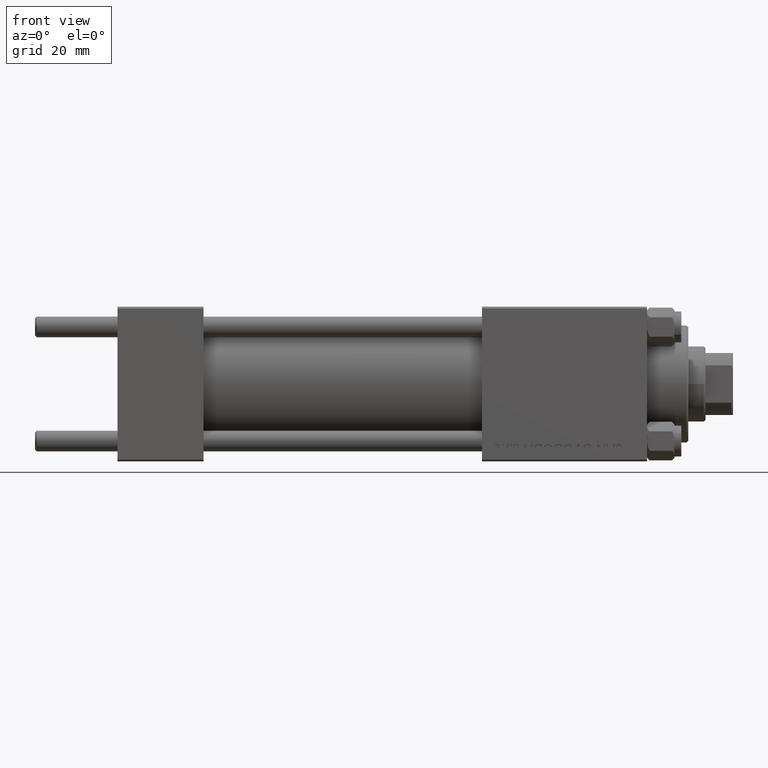
[diagram: clean part render]
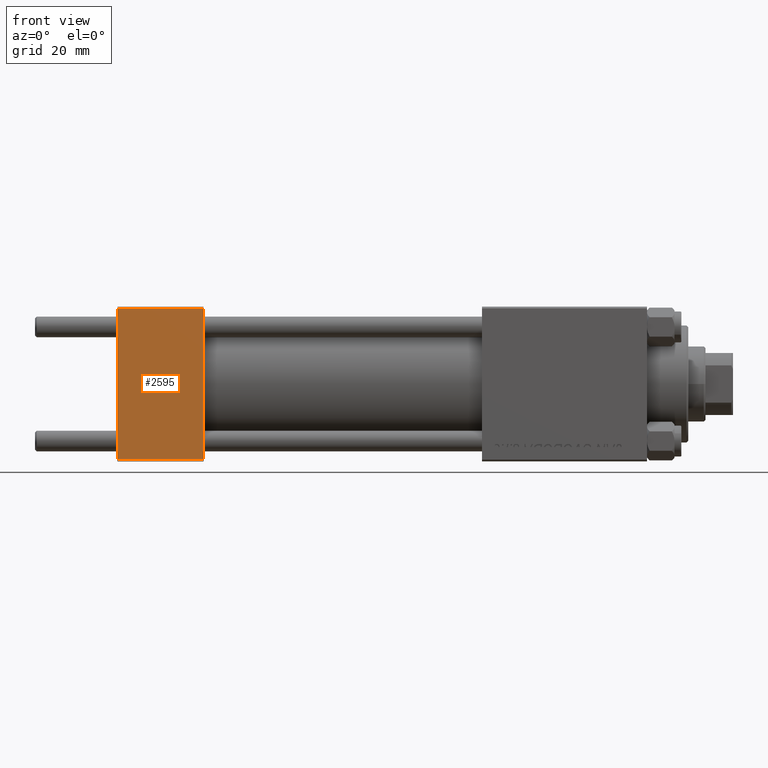
[diagram: same view with one face highlighted and labeled with its STEP entity id]
A machine part, front view. The second image highlights one B-rep face of the part: STEP entity #2595.
In plain terms, the highlighted planar face has unit normal (0, 1, 0).
Its self-contained STEP definition (entity closure, byte-faithful):
#1121 = CARTESIAN_POINT ( 'NONE',  ( 0.000000000000000000, -22.50000000000000000, 22.50000000000000000 ) ) ;
#1220 = CARTESIAN_POINT ( 'NONE',  ( 0.000000000000000000, -22.50000000000000000, 22.00000000000000000 ) ) ;
#1668 = ORIENTED_EDGE ( 'NONE', *, *, #31956, .F. ) ;
#1787 = DIRECTION ( 'NONE',  ( -1.000000000000000000, 0.000000000000000000, 0.000000000000000000 ) ) ;
#2595 = ADVANCED_FACE ( 'NONE', ( #16765 ), #32662, .F. ) ;
#2861 = CARTESIAN_POINT ( 'NONE',  ( 25.00000000000000000, -22.50000000000000000, 22.00000000000000000 ) ) ;
#4520 = VECTOR ( 'NONE', #1787, 1000.000000000000000 ) ;
#6158 = CARTESIAN_POINT ( 'NONE',  ( 25.00000000000000000, -22.50000000000000000, 22.50000000000000000 ) ) ;
#6819 = CARTESIAN_POINT ( 'NONE',  ( 25.00000000000000000, -22.50000000000000000, 22.00000000000000000 ) ) ;
#8748 = LINE ( 'NONE', #35000, #9411 ) ;
#9411 = VECTOR ( 'NONE', #23633, 1000.000000000000000 ) ;
#10712 = VECTOR ( 'NONE', #26258, 1000.000000000000000 ) ;
#10865 = CARTESIAN_POINT ( 'NONE',  ( 25.00000000000000000, -22.50000000000000000, 22.50000000000000000 ) ) ;
#11162 = CARTESIAN_POINT ( 'NONE',  ( 25.00000000000000000, -22.50000000000000000, -21.99999999999997158 ) ) ;
#11195 = EDGE_LOOP ( 'NONE', ( #31060, #11328, #1668, #48654 ) ) ;
#11213 = CARTESIAN_POINT ( 'NONE',  ( 0.000000000000000000, -22.50000000000000000, -21.99999999999997158 ) ) ;
#11328 = ORIENTED_EDGE ( 'NONE', *, *, #45569, .T. ) ;
#13895 = VERTEX_POINT ( 'NONE', #2861 ) ;
#15294 = VERTEX_POINT ( 'NONE', #1220 ) ;
#16765 = FACE_OUTER_BOUND ( 'NONE', #11195, .T. ) ;
#18425 = AXIS2_PLACEMENT_3D ( 'NONE', #6158, #48037, #48523 ) ;
#19821 = LINE ( 'NONE', #1121, #30185 ) ;
#22968 = EDGE_CURVE ( 'NONE', #15294, #47682, #19821, .T. ) ;
#23633 = DIRECTION ( 'NONE',  ( 1.000000000000000000, 0.000000000000000000, 0.000000000000000000 ) ) ;
#23847 = DIRECTION ( 'NONE',  ( 0.000000000000000000, 0.000000000000000000, -1.000000000000000000 ) ) ;
#25998 = LINE ( 'NONE', #6819, #4520 ) ;
#26258 = DIRECTION ( 'NONE',  ( 0.000000000000000000, 0.000000000000000000, -1.000000000000000000 ) ) ;
#30185 = VECTOR ( 'NONE', #23847, 1000.000000000000000 ) ;
#31060 = ORIENTED_EDGE ( 'NONE', *, *, #22968, .T. ) ;
#31956 = EDGE_CURVE ( 'NONE', #13895, #44930, #45173, .T. ) ;
#32662 = PLANE ( 'NONE',  #18425 ) ;
#35000 = CARTESIAN_POINT ( 'NONE',  ( 25.00000000000000000, -22.50000000000000000, -21.99999999999998579 ) ) ;
#40214 = EDGE_CURVE ( 'NONE', #13895, #15294, #25998, .T. ) ;
#44930 = VERTEX_POINT ( 'NONE', #11162 ) ;
#45173 = LINE ( 'NONE', #10865, #10712 ) ;
#45569 = EDGE_CURVE ( 'NONE', #47682, #44930, #8748, .T. ) ;
#47682 = VERTEX_POINT ( 'NONE', #11213 ) ;
#48037 = DIRECTION ( 'NONE',  ( -0.000000000000000000, 1.000000000000000000, 0.000000000000000000 ) ) ;
#48523 = DIRECTION ( 'NONE',  ( 0.000000000000000000, -0.000000000000000000, 1.000000000000000000 ) ) ;
#48654 = ORIENTED_EDGE ( 'NONE', *, *, #40214, .T. ) ;